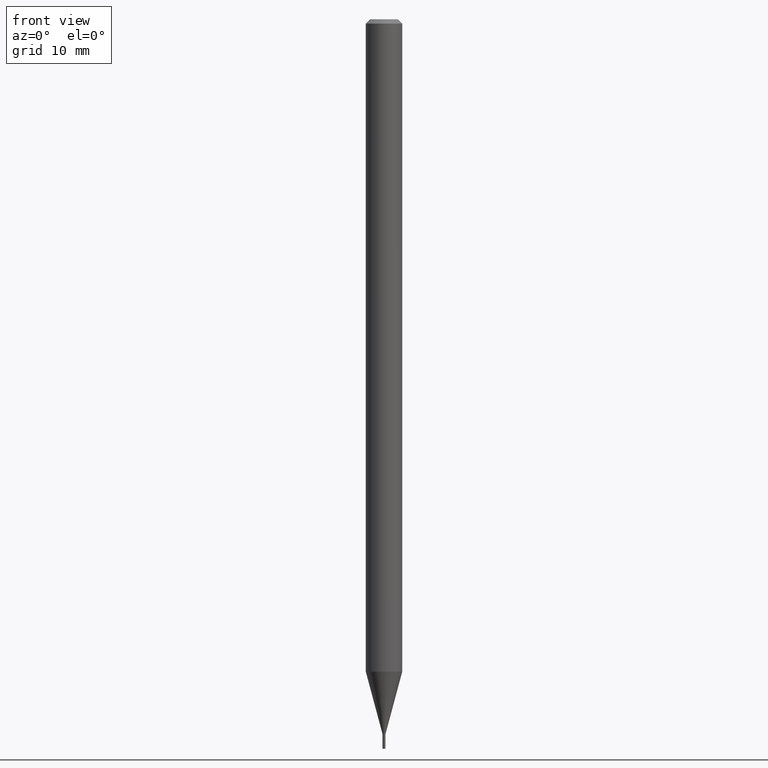
[diagram: clean part render]
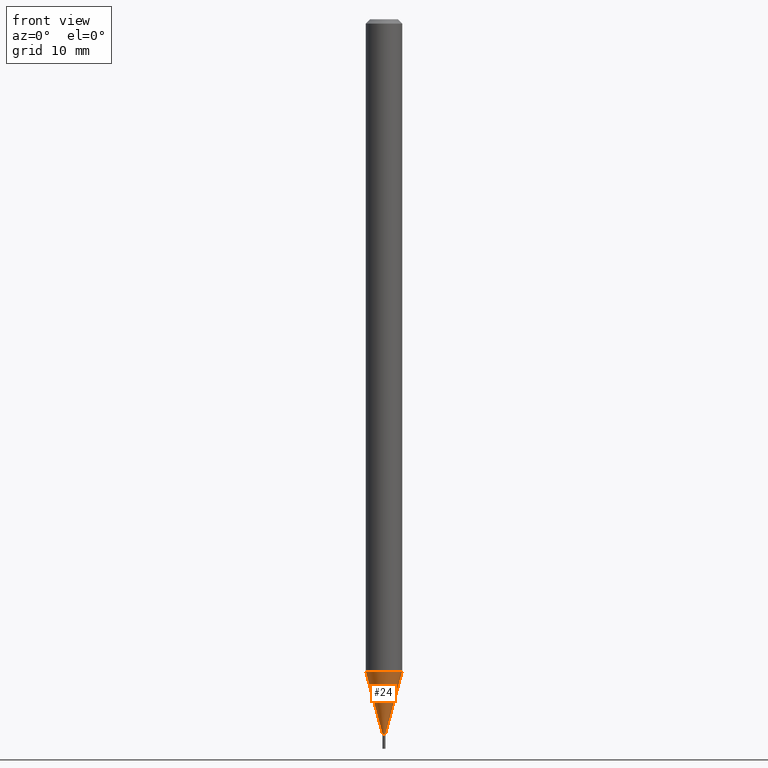
[diagram: same view with one face highlighted and labeled with its STEP entity id]
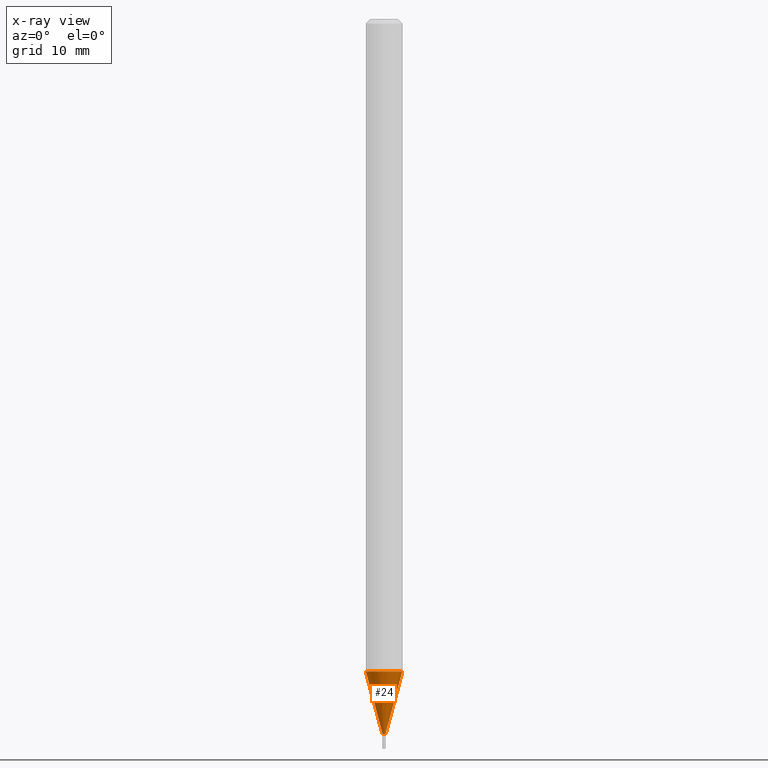
[diagram: x-ray of the same camera — body ghosted, the highlighted face saturated]
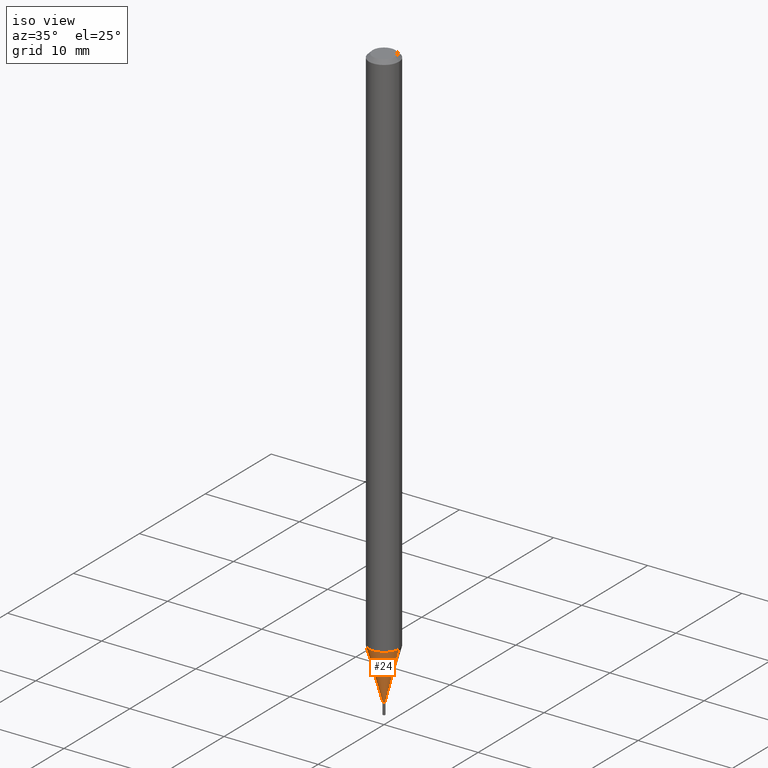
[diagram: same view with one face highlighted and labeled with its STEP entity id]
A machine part, front view. The second image highlights one B-rep face of the part: STEP entity #24.
The next image is the same camera in x-ray: the body ghosted, the highlighted face saturated — about 0% of this face is hidden behind the body in this view.
A second angle (iso view) of the same face is appended — the face is thin or edge-on in the first view.
In plain terms, the highlighted conical surface has half-angle 15 deg.
Its self-contained STEP definition (entity closure, byte-faithful):
#4 = DIRECTION ( 'NONE',  ( 1.000000000000000000, -6.982962677686262766E-15, 0.000000000000000000 ) ) ;
#8 = LINE ( 'NONE', #425, #374 ) ;
#24 = ADVANCED_FACE ( 'NONE', ( #87 ), #345, .T. ) ;
#37 = VERTEX_POINT ( 'NONE', #83 ) ;
#61 = ORIENTED_EDGE ( 'NONE', *, *, #439, .T. ) ;
#73 = CARTESIAN_POINT ( 'NONE',  ( 5.991398575153586007E-29, -8.554129280165708275E-15, -2.450000000000000178 ) ) ;
#74 = AXIS2_PLACEMENT_3D ( 'NONE', #435, #359, #4 ) ;
#76 = EDGE_CURVE ( 'NONE', #37, #213, #8, .T. ) ;
#83 = CARTESIAN_POINT ( 'NONE',  ( 0.005000000000000049544, -8.589044093554139924E-15, -2.450000000000000178 ) ) ;
#87 = FACE_OUTER_BOUND ( 'NONE', #365, .T. ) ;
#91 = CARTESIAN_POINT ( 'NONE',  ( -0.06250000000000000000, -7.360792889676777374E-15, -2.235407078564790595 ) ) ;
#95 = DIRECTION ( 'NONE',  ( -0.2588190451025214611, 5.211531920934550253E-15, 0.9659258262890679791 ) ) ;
#133 = CARTESIAN_POINT ( 'NONE',  ( -0.005000000000000049544, -8.518602143377702445E-15, -2.450000000000000178 ) ) ;
#140 = VERTEX_POINT ( 'NONE', #91 ) ;
#147 = DIRECTION ( 'NONE',  ( -2.445468806185136597E-29, 3.491481338843145583E-15, 1.000000000000000000 ) ) ;
#158 = ORIENTED_EDGE ( 'NONE', *, *, #236, .F. ) ;
#192 = ORIENTED_EDGE ( 'NONE', *, *, #451, .F. ) ;
#213 = VERTEX_POINT ( 'NONE', #352 ) ;
#216 = DIRECTION ( 'NONE',  ( 0.2588190451025214611, 1.565188264969620982E-15, 0.9659258262890679791 ) ) ;
#223 = VECTOR ( 'NONE', #95, 39.37007874015748143 ) ;
#224 = DIRECTION ( 'NONE',  ( 1.000000000000000000, -6.982962677686262766E-15, 0.000000000000000000 ) ) ;
#231 = DIRECTION ( 'NONE',  ( -2.445468806185136597E-29, 3.491481338843145583E-15, 1.000000000000000000 ) ) ;
#236 = EDGE_CURVE ( 'NONE', #305, #140, #242, .T. ) ;
#242 = LINE ( 'NONE', #133, #223 ) ;
#305 = VERTEX_POINT ( 'NONE', #462 ) ;
#312 = AXIS2_PLACEMENT_3D ( 'NONE', #73, #147, #224 ) ;
#327 = CIRCLE ( 'NONE', #312, 0.005000000000000049544 ) ;
#331 = ORIENTED_EDGE ( 'NONE', *, *, #76, .T. ) ;
#345 = CONICAL_SURFACE ( 'NONE', #406, 0.005000000000000049544, 0.2617993877991501850 ) ;
#352 = CARTESIAN_POINT ( 'NONE',  ( 0.06250000000000000000, -8.241317266882231660E-15, -2.235407078564790595 ) ) ;
#355 = CIRCLE ( 'NONE', #74, 0.06250000000000000000 ) ;
#359 = DIRECTION ( 'NONE',  ( -2.445468806185136597E-29, 3.491481338843145583E-15, 1.000000000000000000 ) ) ;
#365 = EDGE_LOOP ( 'NONE', ( #158, #61, #331, #192 ) ) ;
#372 = DIRECTION ( 'NONE',  ( 1.000000000000000000, -6.982962677686262766E-15, 0.000000000000000000 ) ) ;
#374 = VECTOR ( 'NONE', #216, 39.37007874015748143 ) ;
#406 = AXIS2_PLACEMENT_3D ( 'NONE', #407, #231, #372 ) ;
#407 = CARTESIAN_POINT ( 'NONE',  ( 5.991398575153586007E-29, -8.554129280165708275E-15, -2.450000000000000178 ) ) ;
#425 = CARTESIAN_POINT ( 'NONE',  ( 0.005000000000000049544, -8.589044093554139924E-15, -2.450000000000000178 ) ) ;
#435 = CARTESIAN_POINT ( 'NONE',  ( 5.466618279755642309E-29, -7.804882099526839990E-15, -2.235407078564790595 ) ) ;
#439 = EDGE_CURVE ( 'NONE', #305, #37, #327, .T. ) ;
#451 = EDGE_CURVE ( 'NONE', #140, #213, #355, .T. ) ;
#462 = CARTESIAN_POINT ( 'NONE',  ( -0.005000000000000049544, -7.939697516527239910E-15, -2.450000000000000178 ) ) ;